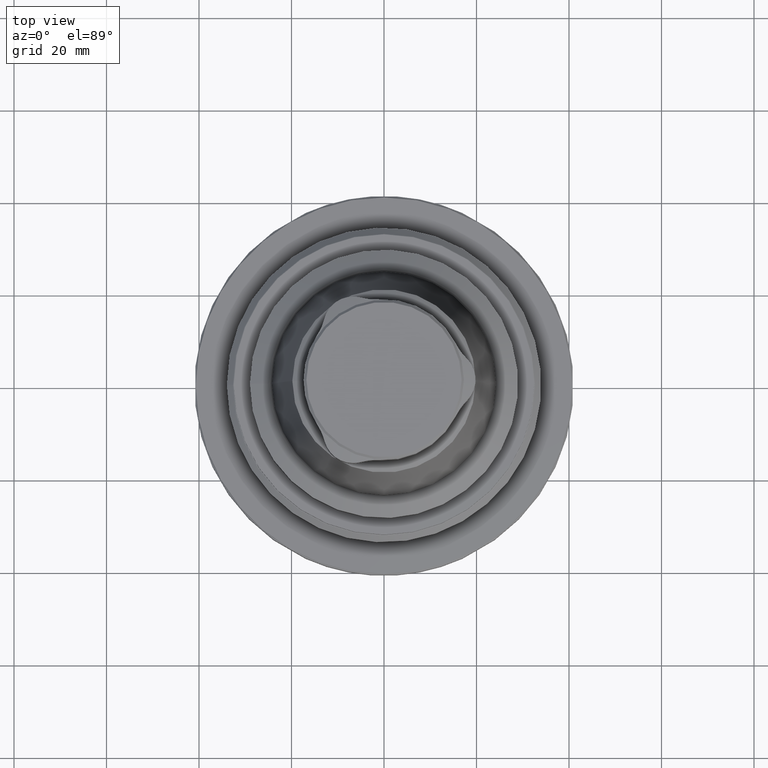
[diagram: clean part render]
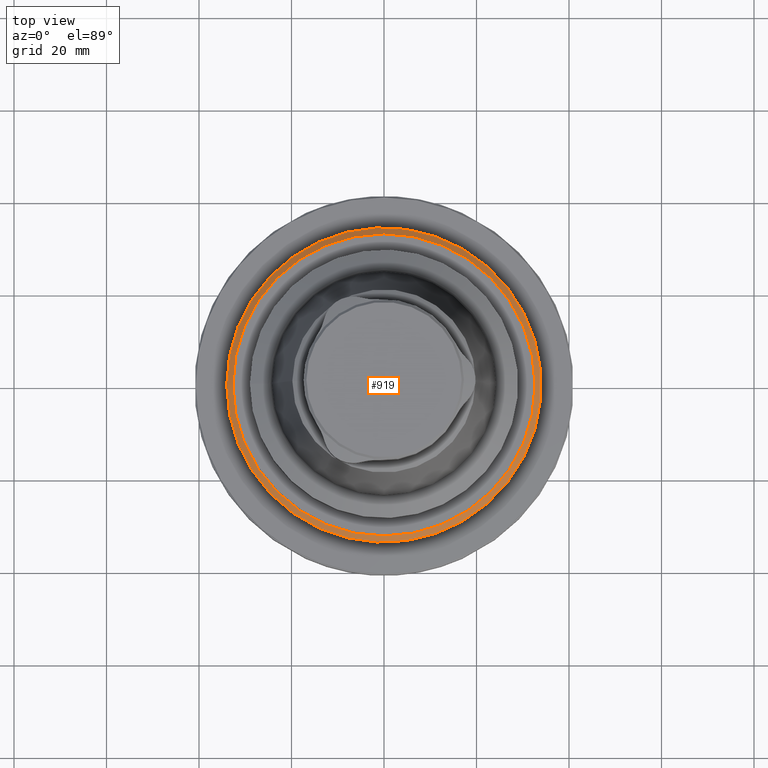
[diagram: same view with one face highlighted and labeled with its STEP entity id]
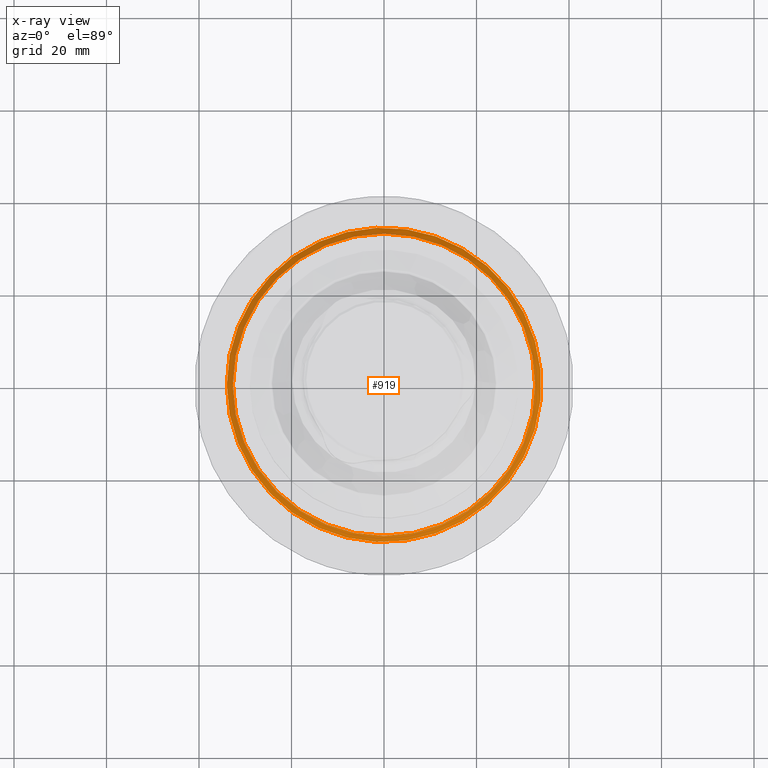
[diagram: x-ray of the same camera — body ghosted, the highlighted face saturated]
A machine part, top view. The second image highlights one B-rep face of the part: STEP entity #919.
The next image is the same camera in x-ray: the body ghosted, the highlighted face saturated — about 0% of this face is hidden behind the body in this view.
In plain terms, the highlighted conical surface has half-angle 45 deg.
Its self-contained STEP definition (entity closure, byte-faithful):
#92=CONICAL_SURFACE('',#1024,32.6757350979542,0.785398163397448);
#139=CIRCLE('',#1023,34.);
#140=CIRCLE('',#1025,32.6757350979542);
#290=ORIENTED_EDGE('',*,*,#476,.F.);
#291=ORIENTED_EDGE('',*,*,#477,.T.);
#476=EDGE_CURVE('',#584,#584,#139,.T.);
#477=EDGE_CURVE('',#585,#585,#140,.T.);
#584=VERTEX_POINT('',#1626);
#585=VERTEX_POINT('',#1629);
#720=EDGE_LOOP('',(#290));
#721=EDGE_LOOP('',(#291));
#815=FACE_BOUND('',#720,.T.);
#816=FACE_BOUND('',#721,.T.);
#919=ADVANCED_FACE('',(#815,#816),#92,.T.);
#1023=AXIS2_PLACEMENT_3D('',#1625,#1214,#1215);
#1024=AXIS2_PLACEMENT_3D('',#1627,#1216,#1217);
#1025=AXIS2_PLACEMENT_3D('',#1628,#1218,#1219);
#1214=DIRECTION('',(-7.30126435159279E-33,-9.52839055771651E-18,-1.));
#1215=DIRECTION('',(-1.,-8.32667268468868E-17,2.89465139560709E-33));
#1216=DIRECTION('',(-7.30126435159279E-33,-9.52839055771651E-18,-1.));
#1217=DIRECTION('',(-1.,-8.32667268468868E-17,2.89465139560709E-33));
#1218=DIRECTION('',(-7.30126435159279E-33,-9.52839055771651E-18,-1.));
#1219=DIRECTION('',(-1.,-8.32667268468868E-17,2.89465139560709E-33));
#1625=CARTESIAN_POINT('',(7.88665112559661E-15,-1.42925858365752E-17,7.09999999999999));
#1626=CARTESIAN_POINT('',(-34.,-2.84536129863073E-15,7.09999999999999));
#1627=CARTESIAN_POINT('',(7.88665112559661E-15,-1.67447264800628E-18,8.42426490204583));
#1628=CARTESIAN_POINT('',(7.88665112559661E-15,-1.67447264800628E-18,8.42426490204583));
#1629=CARTESIAN_POINT('',(-32.6757350979542,-2.72247598157059E-15,8.42426490204583));